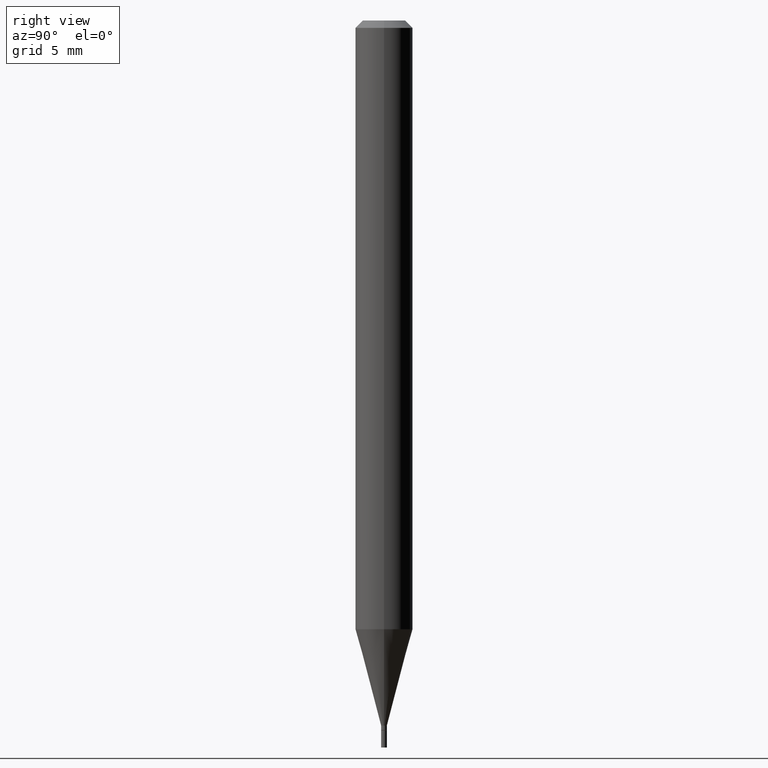
[diagram: clean part render]
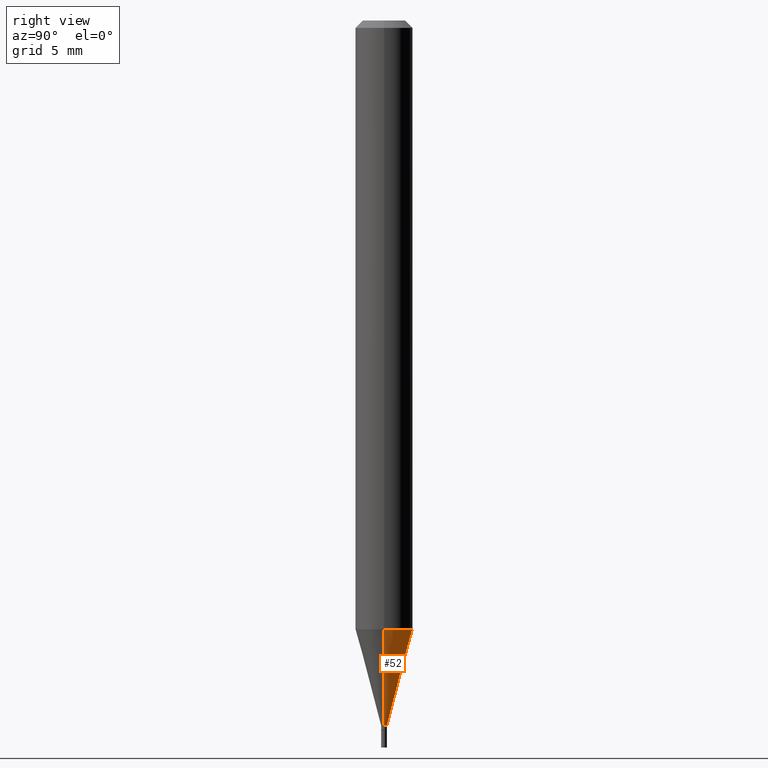
[diagram: same view with one face highlighted and labeled with its STEP entity id]
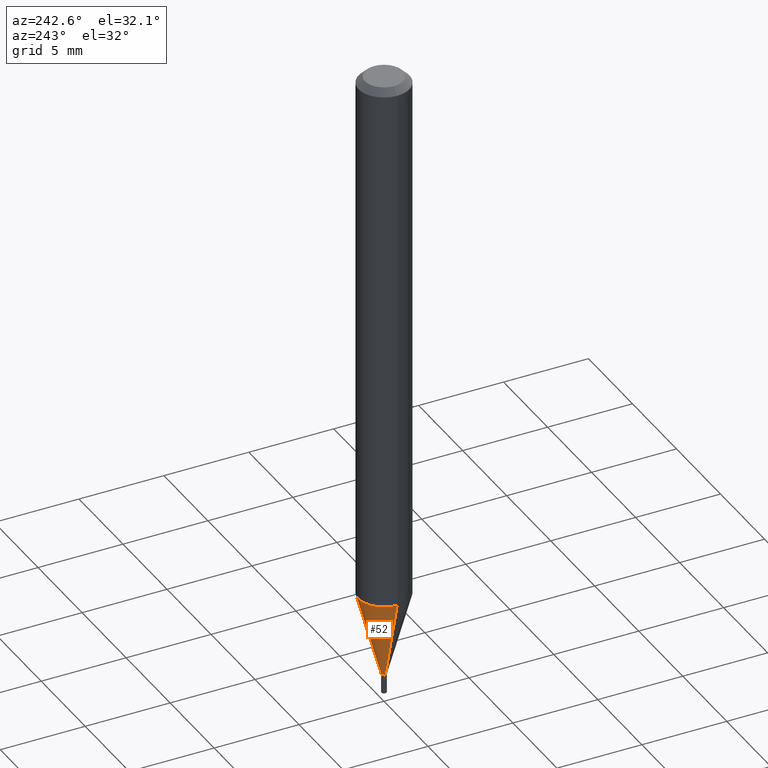
[diagram: same view with one face highlighted and labeled with its STEP entity id]
A machine part, right view. The second image highlights one B-rep face of the part: STEP entity #52.
A second angle (auxiliary view) of the same face is appended — the face is thin or edge-on in the first view.
In plain terms, the highlighted conical surface has half-angle 15 deg.
Its self-contained STEP definition (entity closure, byte-faithful):
#18 = LINE ( 'NONE', #259, #432 ) ;
#21 = DIRECTION ( 'NONE',  ( 1.000000000000000000, -6.982962677686309309E-15, 0.000000000000000000 ) ) ;
#31 = DIRECTION ( 'NONE',  ( 1.000000000000000000, -6.982962677686309309E-15, 0.000000000000000000 ) ) ;
#49 = VERTEX_POINT ( 'NONE', #242 ) ;
#52 = ADVANCED_FACE ( 'NONE', ( #233 ), #397, .T. ) ;
#59 = AXIS2_PLACEMENT_3D ( 'NONE', #160, #88, #332 ) ;
#60 = EDGE_CURVE ( 'NONE', #84, #252, #18, .T. ) ;
#62 = CARTESIAN_POINT ( 'NONE',  ( -0.05905000000000000526, -3.954348082703628668E-15, -1.252741499577714190 ) ) ;
#84 = VERTEX_POINT ( 'NONE', #187 ) ;
#88 = DIRECTION ( 'NONE',  ( -2.445468806185136597E-29, 3.491481338843145583E-15, 1.000000000000000000 ) ) ;
#92 = EDGE_LOOP ( 'NONE', ( #457, #456, #444, #96 ) ) ;
#95 = DIRECTION ( 'NONE',  ( 0.2588190451025212391, 1.565188264969622362E-15, 0.9659258262890679791 ) ) ;
#96 = ORIENTED_EDGE ( 'NONE', *, *, #267, .F. ) ;
#120 = DIRECTION ( 'NONE',  ( -2.445468806185136597E-29, 3.491481338843145583E-15, 1.000000000000000000 ) ) ;
#160 = CARTESIAN_POINT ( 'NONE',  ( 3.063540259430890909E-29, -4.373923568169968161E-15, -1.252741499577714190 ) ) ;
#187 = CARTESIAN_POINT ( 'NONE',  ( -0.005899999999999922667, -4.489457316044536124E-15, -1.451100000000000056 ) ) ;
#190 = AXIS2_PLACEMENT_3D ( 'NONE', #329, #120, #21 ) ;
#193 = CARTESIAN_POINT ( 'NONE',  ( 3.548619784655251556E-29, -5.066488570795288817E-15, -1.451100000000000056 ) ) ;
#206 = CARTESIAN_POINT ( 'NONE',  ( 0.05905000000000000526, -4.786267514287342293E-15, -1.252741499577714190 ) ) ;
#233 = FACE_OUTER_BOUND ( 'NONE', #92, .T. ) ;
#242 = CARTESIAN_POINT ( 'NONE',  ( 0.005899999999999922667, -5.107688050593637090E-15, -1.451100000000000056 ) ) ;
#252 = VERTEX_POINT ( 'NONE', #62 ) ;
#259 = CARTESIAN_POINT ( 'NONE',  ( -0.005899999999999922667, -5.024566549385442790E-15, -1.451100000000000056 ) ) ;
#267 = EDGE_CURVE ( 'NONE', #49, #412, #303, .T. ) ;
#274 = EDGE_CURVE ( 'NONE', #49, #84, #281, .T. ) ;
#281 = CIRCLE ( 'NONE', #319, 0.005899999999999922667 ) ;
#303 = LINE ( 'NONE', #460, #326 ) ;
#319 = AXIS2_PLACEMENT_3D ( 'NONE', #193, #343, #31 ) ;
#326 = VECTOR ( 'NONE', #95, 39.37007874015748854 ) ;
#329 = CARTESIAN_POINT ( 'NONE',  ( 3.548619784655251556E-29, -5.066488570795288817E-15, -1.451100000000000056 ) ) ;
#332 = DIRECTION ( 'NONE',  ( 1.000000000000000000, -6.982962677686273021E-15, 0.000000000000000000 ) ) ;
#343 = DIRECTION ( 'NONE',  ( -2.445468806185136597E-29, 3.491481338843145583E-15, 1.000000000000000000 ) ) ;
#359 = DIRECTION ( 'NONE',  ( -0.2588190451025212391, 5.211531920934549464E-15, 0.9659258262890679791 ) ) ;
#397 = CONICAL_SURFACE ( 'NONE', #190, 0.005899999999999922667, 0.2617993877991499629 ) ;
#411 = CIRCLE ( 'NONE', #59, 0.05904999999999999832 ) ;
#412 = VERTEX_POINT ( 'NONE', #206 ) ;
#432 = VECTOR ( 'NONE', #359, 39.37007874015748854 ) ;
#442 = EDGE_CURVE ( 'NONE', #412, #252, #411, .T. ) ;
#444 = ORIENTED_EDGE ( 'NONE', *, *, #442, .F. ) ;
#456 = ORIENTED_EDGE ( 'NONE', *, *, #60, .T. ) ;
#457 = ORIENTED_EDGE ( 'NONE', *, *, #274, .T. ) ;
#460 = CARTESIAN_POINT ( 'NONE',  ( 0.005899999999999922667, -5.107688050593637090E-15, -1.451100000000000056 ) ) ;